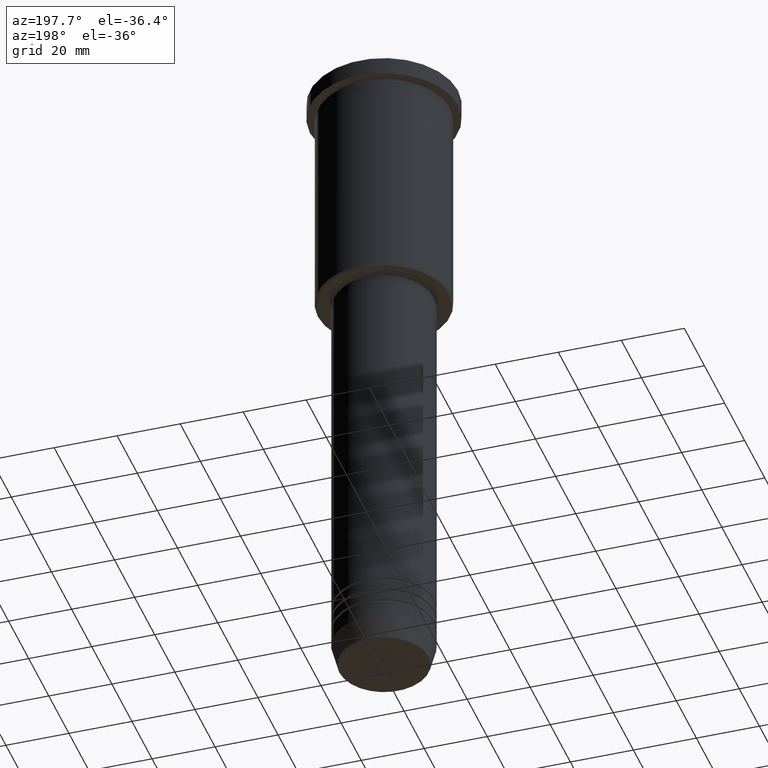
[diagram: clean part render]
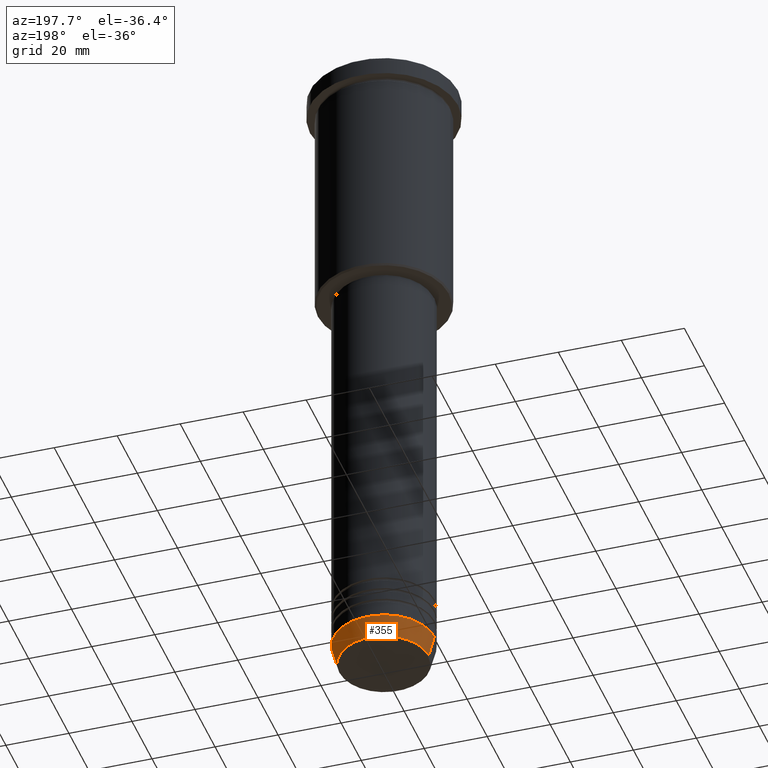
[diagram: same view with one face highlighted and labeled with its STEP entity id]
A machine part, auxiliary view. The second image highlights one B-rep face of the part: STEP entity #355.
In plain terms, the highlighted conical surface has half-angle 15 deg.
Its self-contained STEP definition (entity closure, byte-faithful):
#8 = ORIENTED_EDGE ( 'NONE', *, *, #448, .F. ) ;
#19 = EDGE_CURVE ( 'NONE', #266, #816, #241, .T. ) ;
#109 = DIRECTION ( 'NONE',  ( -0.000000000000000000, -0.000000000000000000, 1.000000000000000000 ) ) ;
#117 = CARTESIAN_POINT ( 'NONE',  ( 0.000000000000000000, 0.000000000000000000, -204.0000000000000284 ) ) ;
#234 = CARTESIAN_POINT ( 'NONE',  ( -16.00000000000000000, 1.959434878635765131E-15, -204.0000000000000284 ) ) ;
#241 = LINE ( 'NONE', #234, #363 ) ;
#264 = CARTESIAN_POINT ( 'NONE',  ( -14.22365507213718239, 1.850665122131322942E-15, -210.6294095225512706 ) ) ;
#266 = VERTEX_POINT ( 'NONE', #264 ) ;
#273 = LINE ( 'NONE', #412, #423 ) ;
#292 = CONICAL_SURFACE ( 'NONE', #1183, 16.00000000000000000, 0.2617993877991500740 ) ;
#309 = EDGE_CURVE ( 'NONE', #1014, #816, #618, .T. ) ;
#324 = CARTESIAN_POINT ( 'NONE',  ( 14.22365507213718239, 0.000000000000000000, -210.6294095225512706 ) ) ;
#355 = ADVANCED_FACE ( 'NONE', ( #469 ), #292, .T. ) ;
#363 = VECTOR ( 'NONE', #685, 1000.000000000000000 ) ;
#365 = AXIS2_PLACEMENT_3D ( 'NONE', #746, #731, #662 ) ;
#412 = CARTESIAN_POINT ( 'NONE',  ( 16.00000000000000000, 0.000000000000000000, -204.0000000000000284 ) ) ;
#416 = CARTESIAN_POINT ( 'NONE',  ( -16.00000000000000000, 1.959434878635765131E-15, -204.0000000000000284 ) ) ;
#423 = VECTOR ( 'NONE', #1049, 1000.000000000000000 ) ;
#436 = CARTESIAN_POINT ( 'NONE',  ( 0.000000000000000000, 0.000000000000000000, -210.6294095225512706 ) ) ;
#448 = EDGE_CURVE ( 'NONE', #586, #1014, #273, .T. ) ;
#456 = CARTESIAN_POINT ( 'NONE',  ( 16.00000000000000000, 0.000000000000000000, -204.0000000000000284 ) ) ;
#469 = FACE_OUTER_BOUND ( 'NONE', #786, .T. ) ;
#488 = AXIS2_PLACEMENT_3D ( 'NONE', #436, #1181, #905 ) ;
#566 = DIRECTION ( 'NONE',  ( 1.000000000000000000, 0.000000000000000000, 0.000000000000000000 ) ) ;
#586 = VERTEX_POINT ( 'NONE', #324 ) ;
#618 = CIRCLE ( 'NONE', #365, 16.00000000000000000 ) ;
#621 = CIRCLE ( 'NONE', #488, 14.22365507213718239 ) ;
#662 = DIRECTION ( 'NONE',  ( 1.000000000000000000, 0.000000000000000000, 0.000000000000000000 ) ) ;
#685 = DIRECTION ( 'NONE',  ( -0.2588190451025213501, 3.169619151431772337E-17, 0.9659258262890680902 ) ) ;
#731 = DIRECTION ( 'NONE',  ( -0.000000000000000000, -0.000000000000000000, 1.000000000000000000 ) ) ;
#746 = CARTESIAN_POINT ( 'NONE',  ( 0.000000000000000000, 0.000000000000000000, -204.0000000000000284 ) ) ;
#786 = EDGE_LOOP ( 'NONE', ( #949, #843, #920, #8 ) ) ;
#816 = VERTEX_POINT ( 'NONE', #416 ) ;
#843 = ORIENTED_EDGE ( 'NONE', *, *, #19, .T. ) ;
#898 = EDGE_CURVE ( 'NONE', #586, #266, #621, .T. ) ;
#905 = DIRECTION ( 'NONE',  ( 1.000000000000000000, 0.000000000000000000, 0.000000000000000000 ) ) ;
#920 = ORIENTED_EDGE ( 'NONE', *, *, #309, .F. ) ;
#949 = ORIENTED_EDGE ( 'NONE', *, *, #898, .T. ) ;
#1014 = VERTEX_POINT ( 'NONE', #456 ) ;
#1049 = DIRECTION ( 'NONE',  ( 0.2588190451025213501, 0.000000000000000000, 0.9659258262890680902 ) ) ;
#1181 = DIRECTION ( 'NONE',  ( -0.000000000000000000, -0.000000000000000000, 1.000000000000000000 ) ) ;
#1183 = AXIS2_PLACEMENT_3D ( 'NONE', #117, #109, #566 ) ;